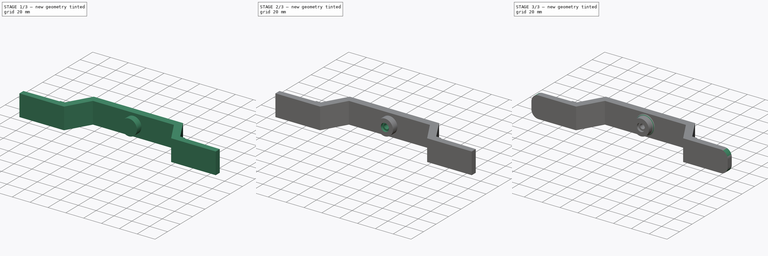
[diagram: build sequence overview — one tinted view per stage of 3, left to right]
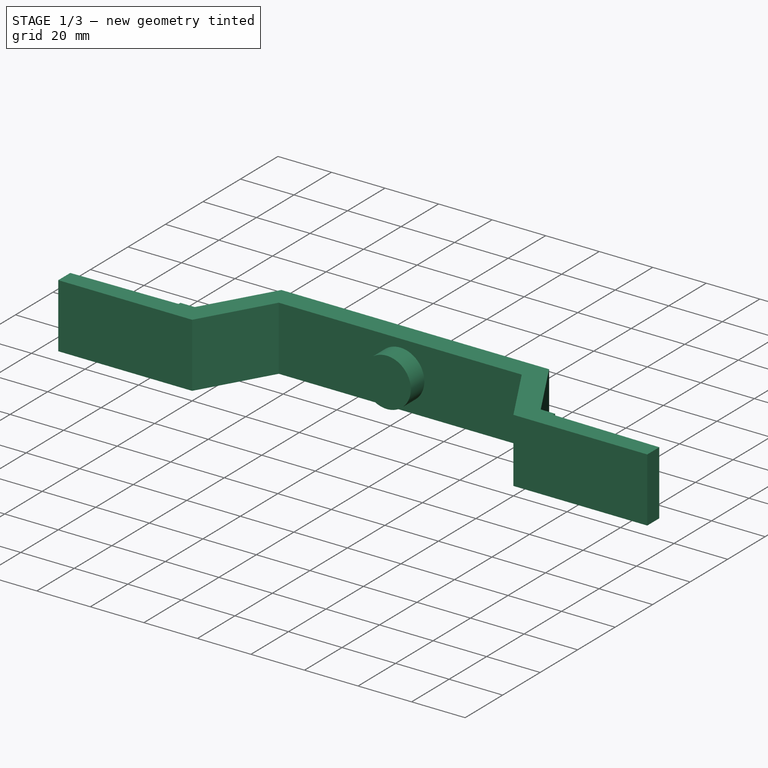
[diagram: stage 1 of 3 — iso view after this stage's code; geometry added in this stage tinted green]
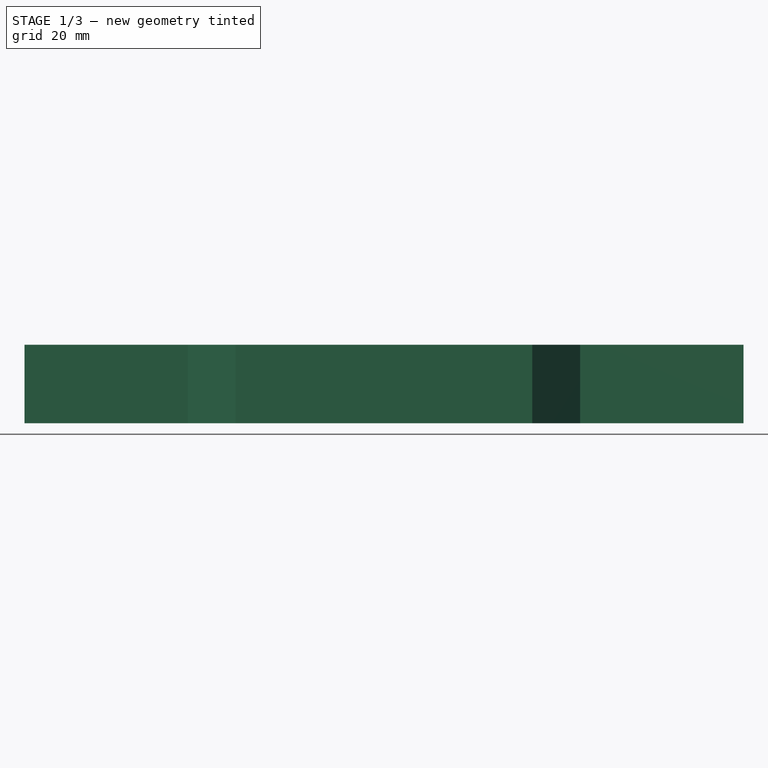
[diagram: stage 1 of 3 — front view after this stage's code; geometry added in this stage tinted green]
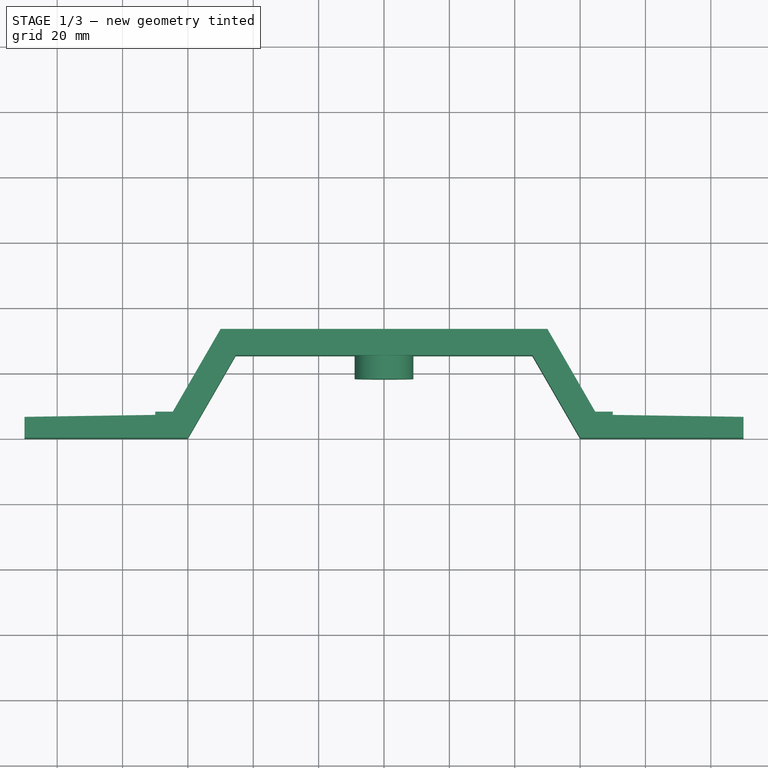
[diagram: stage 1 of 3 — top view after this stage's code; geometry added in this stage tinted green]
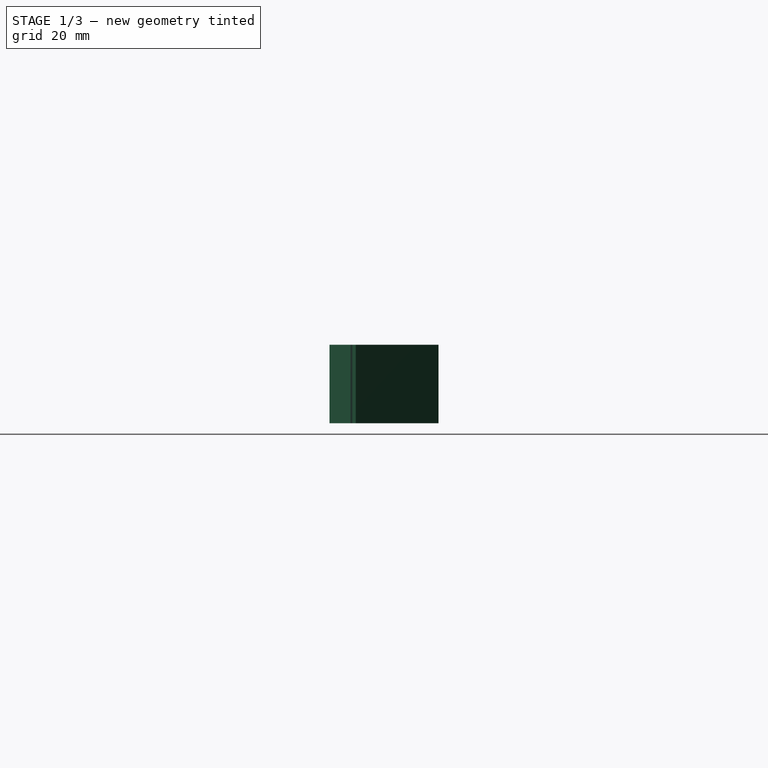
[diagram: stage 1 of 3 — right view after this stage's code; geometry added in this stage tinted green]
FCSTD DOCUMENT  (FreeCAD 0.20R29603 (Git))
Label: Base2V3
License: All rights reserved
LicenseURL: http://en.wikipedia.org/wiki/All_rights_reserved
objects: Sketcher::SketchObject×4, PartDesign::Pad×2, PartDesign::Pocket×2, PartDesign::Chamfer×1, PartDesign::Fillet×1, PartDesign::Body×1
note: 17 computed .brp shape members not serialized (recipe doc carries the construction recipe); baked Part::Feature solids carry a one-line shape summary decoded from their .brp

FEATURE [Sketcher::SketchObject] Sketch
  FullyConstrained = true
  MapMode = 5
  Support = -> [XY_Plane]
  sketch-geometry (16):
    g0: LineSegment StartX=-110 StartY=0 StartZ=0 EndX=-60 EndY=0 EndZ=0
    g1: LineSegment StartX=-60 StartY=0 StartZ=0 EndX=-45.38 EndY=25.3226 EndZ=0
    g2: LineSegment StartX=-110 StartY=0 StartZ=0 EndX=-110 EndY=6.4 EndZ=0
    g3: LineSegment StartX=-64.62 StartY=8 StartZ=0 EndX=-50 EndY=33.3226 EndZ=0
    g4: LineSegment StartX=-64.62 StartY=8 StartZ=0 EndX=-70 EndY=8 EndZ=0
    g5: LineSegment StartX=-70 StartY=8 StartZ=0 EndX=-70 EndY=7 EndZ=0
    g6: LineSegment StartX=-70 StartY=7 StartZ=0 EndX=-110 EndY=6.4 EndZ=0
    g7: LineSegment StartX=110 StartY=0 StartZ=0 EndX=60 EndY=0 EndZ=0
    g8: LineSegment StartX=60 StartY=0 StartZ=0 EndX=45.38 EndY=25.3226 EndZ=0
    g9: LineSegment StartX=110 StartY=0 StartZ=0 EndX=110 EndY=6.4 EndZ=0
    g10: LineSegment StartX=64.62 StartY=8 StartZ=0 EndX=50 EndY=33.3226 EndZ=0
    g11: LineSegment StartX=64.62 StartY=8 StartZ=0 EndX=70 EndY=8 EndZ=0
    g12: LineSegment StartX=70 StartY=8 StartZ=0 EndX=70 EndY=7 EndZ=0
    g13: LineSegment StartX=70 StartY=7 StartZ=0 EndX=110 EndY=6.4 EndZ=0
    g14: LineSegment StartX=-45.38 StartY=25.3226 StartZ=0 EndX=45.38 EndY=25.3226 EndZ=0
    g15: LineSegment StartX=-50 StartY=33.3226 StartZ=0 EndX=50 EndY=33.3226 EndZ=0
  constraints (45):
    c: PointOnObject(g0,g-1)
    c: PointOnObject(g0,g-1)
    c: Coincident(g0,g1)
    c: Coincident(g0,g2)
    c: Angle(g1) = 1.0472
    c: Parallel(g3,g1)
    c: Vertical(g2)
    c: DistanceX(g0,g0) = 50
    c: DistanceY(g0,g2) = 6.4
    c: DistanceX(g3,g0) = 4.62
    c: Coincident(g4,g3)
    c: Horizontal(g4)
    c: DistanceY(g0,g4) = 8
    c: Coincident(g5,g4)
    c: Vertical(g5)
    c: Coincident(g6,g5)
    c: Coincident(g6,g2)
    c: DistanceY(g5,g4) = 1
    c: DistanceX(g2,g5) = 40
    c: Coincident(g7,g8)
    c: Coincident(g7,g9)
    c: Angle(g8) = 2.0944
    c: Parallel(g10,g8)
    c: Vertical(g9)
    c: Coincident(g11,g10)
    c: Horizontal(g11)
    c: Coincident(g12,g11)
    c: Vertical(g12)
    c: Coincident(g13,g12)
    c: Coincident(g13,g9)
    c: Equal(g6,g13)
    c: Symmetric(g0,g7,g-2)
    c: Symmetric(g10,g3,g-2)
    c: Symmetric(g7,g0,g-2)
    c: Equal(g11,g4)
    c: Equal(g9,g2)
    c: Coincident(g14,g1)
    c: Coincident(g14,g8)
    c: Horizontal(g14)
    c: Coincident(g15,g3)
    c: Coincident(g15,g10)
    c: Horizontal(g15)
    c: DistanceX(g0,g7) = 220
    c: DistanceX(g3,g10) = 100
    c: DistanceY(g8,g10) = 8
FEATURE [PartDesign::Pad] Pad
  Direction = (0,0,1)
  Length = 24
  Length2 = 10
  Midplane = true
  Profile = -> Sketch
  ReferenceAxis = -> Sketch [N_Axis]
  Type = 0
FEATURE [Sketcher::SketchObject] Sketch002
  FullyConstrained = true
  MapMode = 5
  Placement = pos=(0,25.3226,0) rot=(1,0,0;1.5708rad)
  sketch-geometry (1):
    g0: Circle CenterX=0 CenterY=0 CenterZ=0 NormalX=0 NormalY=0 NormalZ=1 AngleXU=0 Radius=9
  constraints (2):
    c: Coincident(g0,g-1)
    c: Diameter(g0) = 18
FEATURE [PartDesign::Pad] Pad001
  BaseFeature = -> Pad
  Direction = (0,-1,2e-16)
  Length = 7.2
  Length2 = 10
  Profile = -> Sketch002
  ReferenceAxis = -> Sketch002 [N_Axis]
  Type = 0
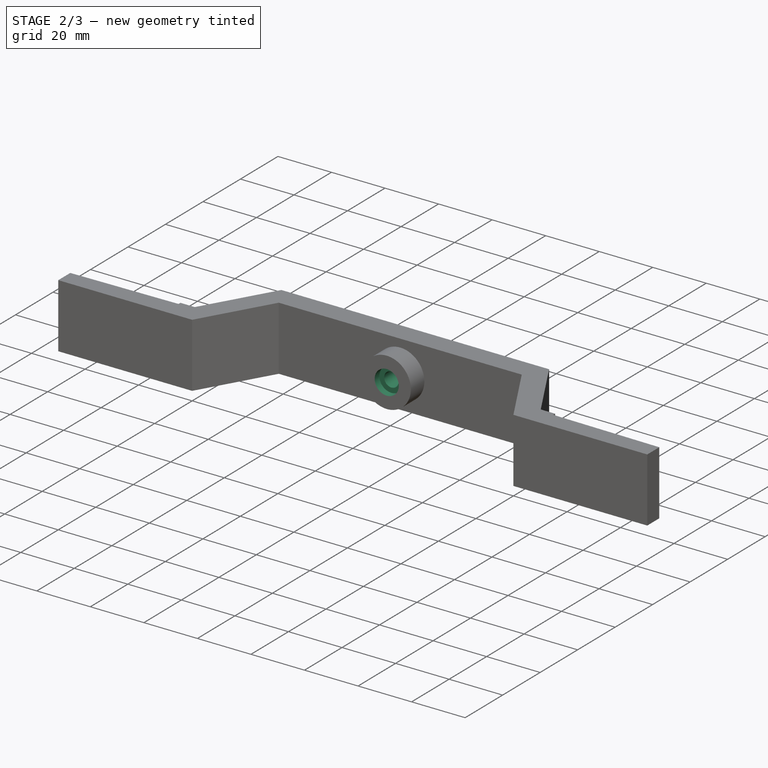
[diagram: stage 2 of 3 — iso view after this stage's code; geometry added in this stage tinted green]
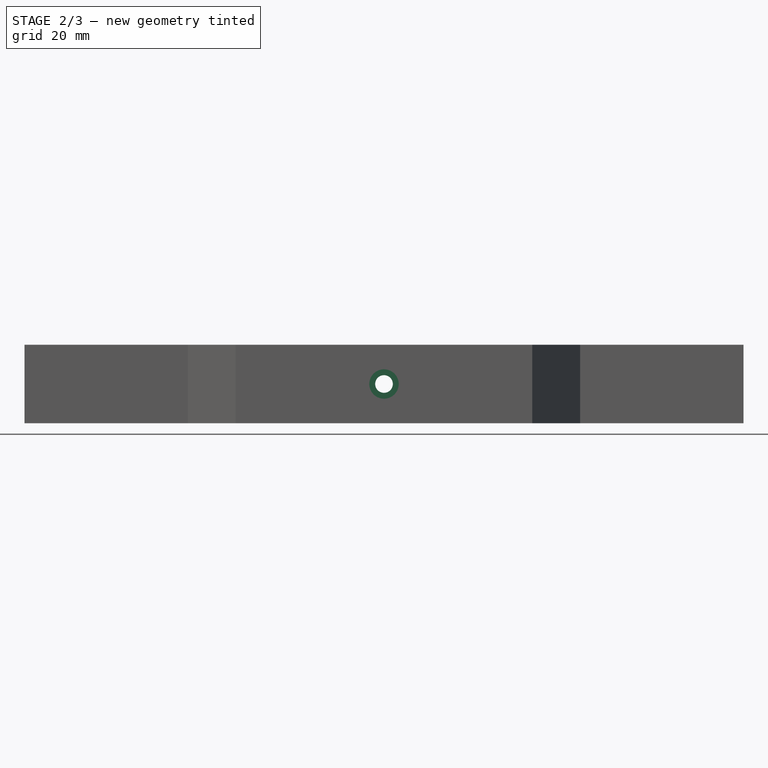
[diagram: stage 2 of 3 — front view after this stage's code; geometry added in this stage tinted green]
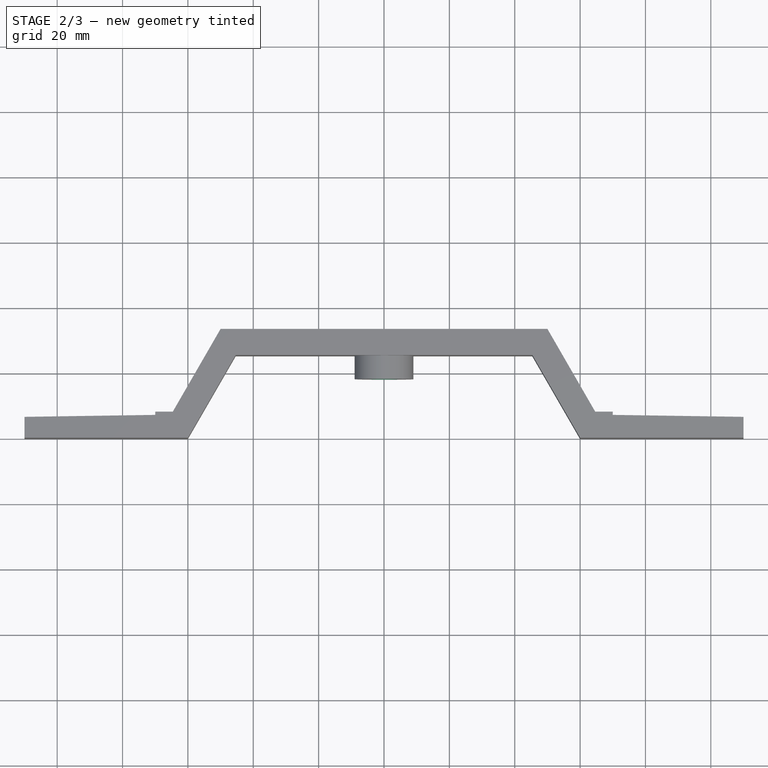
[diagram: stage 2 of 3 — top view after this stage's code; geometry added in this stage tinted green]
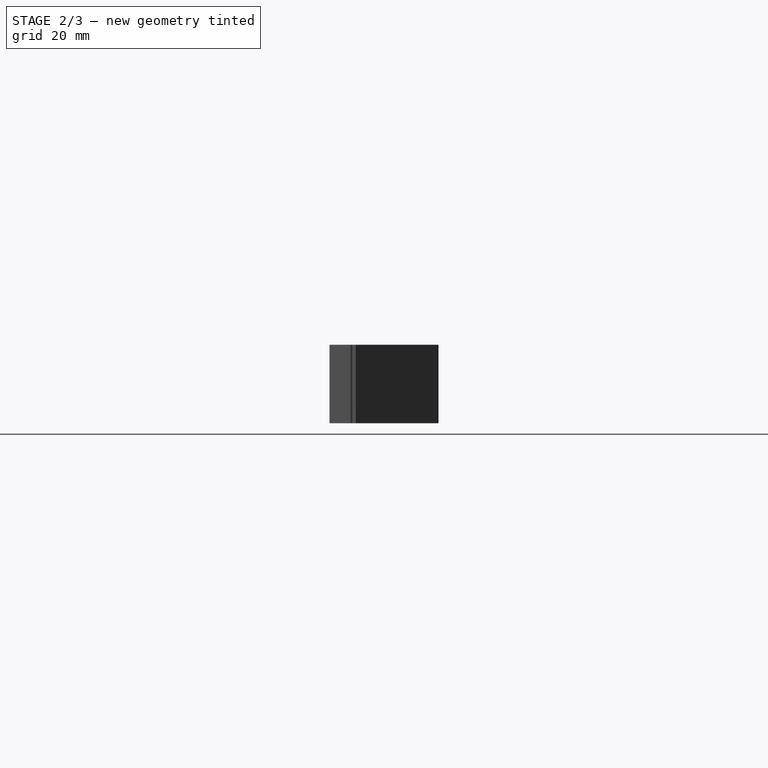
[diagram: stage 2 of 3 — right view after this stage's code; geometry added in this stage tinted green]
FEATURE [Sketcher::SketchObject] Sketch003
  FullyConstrained = true
  MapMode = 5
  Placement = pos=(0,18.1226,0) rot=(1,0,0;1.5708rad)
  Support = -> [Pad001]
  sketch-geometry (1):
    g0: Circle CenterX=0 CenterY=0 CenterZ=0 NormalX=0 NormalY=0 NormalZ=1 AngleXU=0 Radius=4.5
  constraints (2):
    c: Coincident(g0,g-1)
    c: Diameter(g0) = 9
FEATURE [PartDesign::Pocket] Pocket
  BaseFeature = -> Pad001
  Direction = (0,1,-2e-16)
  Length = 2.5
  Length2 = 5
  Profile = -> Sketch003
  ReferenceAxis = -> Sketch003 [N_Axis]
  Type = 0
FEATURE [Sketcher::SketchObject] Sketch004
  FullyConstrained = true
  MapMode = 5
  Placement = pos=(0,20.6226,0) rot=(1,0,0;1.5708rad)
  Support = -> [Pocket]
  sketch-geometry (1):
    g0: Circle CenterX=0 CenterY=0 CenterZ=0 NormalX=0 NormalY=0 NormalZ=1 AngleXU=0 Radius=2.7
  constraints (2):
    c: Coincident(g0,g-1)
    c: Diameter(g0) = 5.4
FEATURE [PartDesign::Pocket] Pocket001
  BaseFeature = -> Pocket
  Direction = (0,1,-2e-16)
  Length = 5
  Length2 = 5
  Profile = -> Sketch004
  ReferenceAxis = -> Sketch004 [N_Axis]
  Type = 1
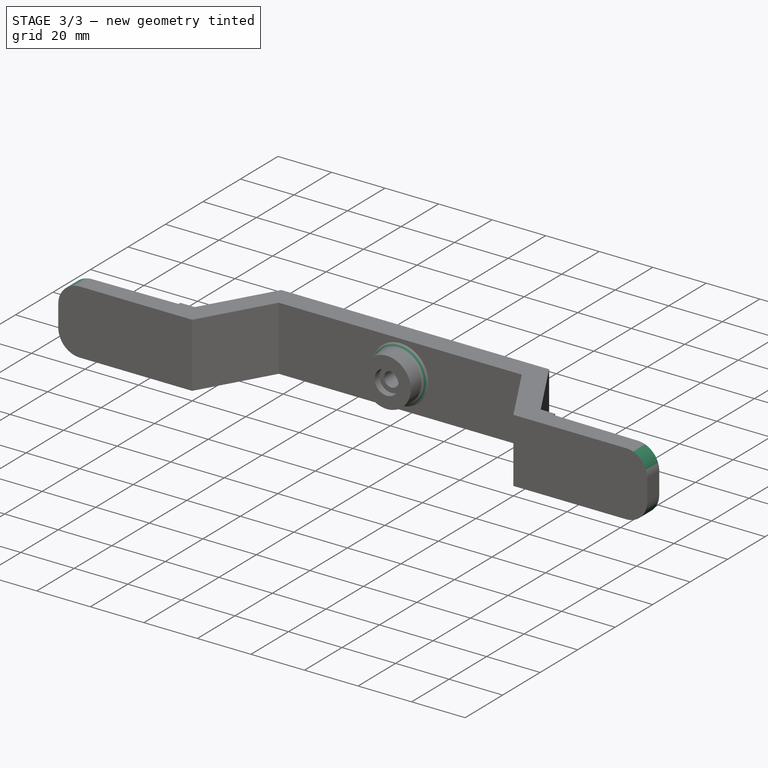
[diagram: stage 3 of 3 — iso view after this stage's code; geometry added in this stage tinted green]
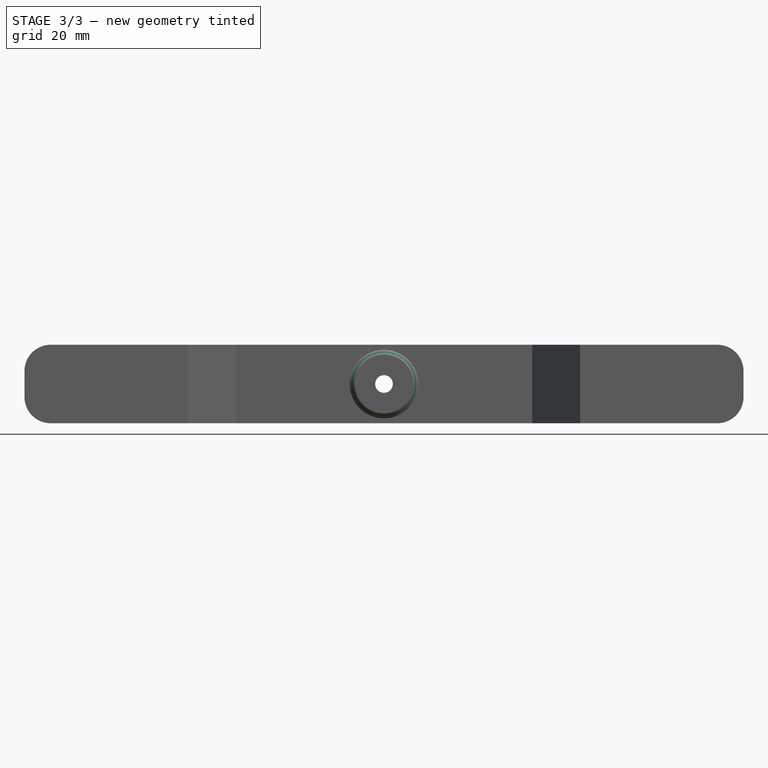
[diagram: stage 3 of 3 — front view after this stage's code; geometry added in this stage tinted green]
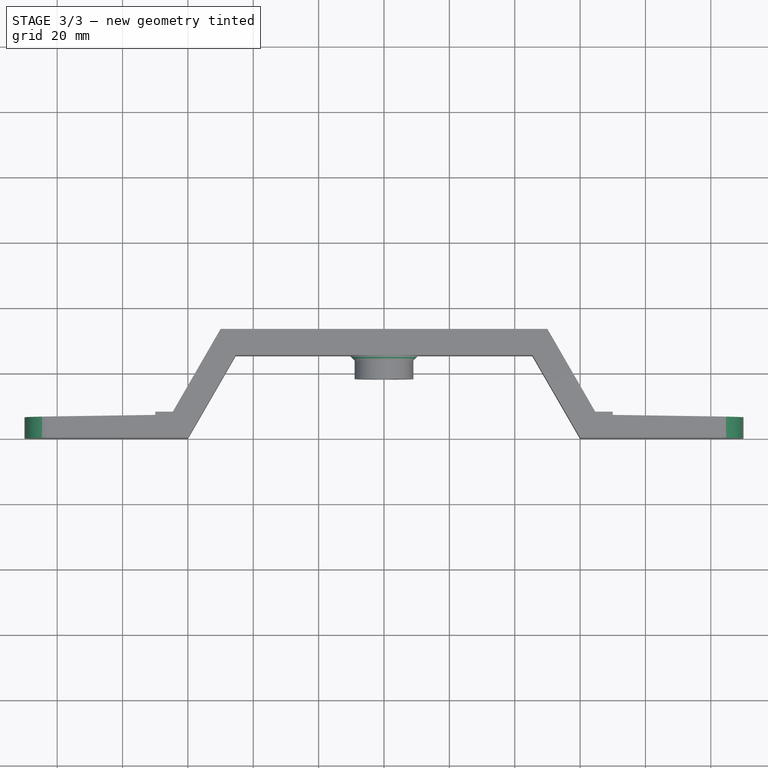
[diagram: stage 3 of 3 — top view after this stage's code; geometry added in this stage tinted green]
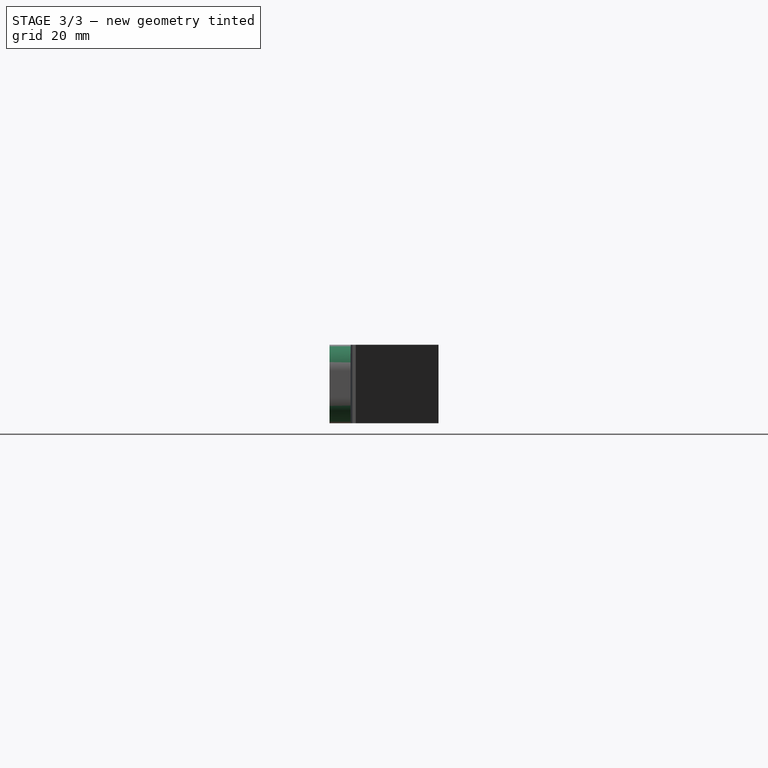
[diagram: stage 3 of 3 — right view after this stage's code; geometry added in this stage tinted green]
FEATURE [PartDesign::Chamfer] Chamfer
  Angle = 45
  Base = -> Pocket001 [Edge44]
  BaseFeature = -> Pocket001
  ChamferType = 0
  FlipDirection = false
  Size = 1.5
  Size2 = 1
  SupportTransform = false
  UseAllEdges = false
FEATURE [PartDesign::Fillet] Fillet
  Base = -> Chamfer [Edge14,Edge28,Edge18,Edge32]
  BaseFeature = -> Chamfer
  Radius = 8
  SupportTransform = false
  UseAllEdges = false
FEATURE [PartDesign::Body] Body
  Group = -> [Sketch,Pad,Sketch002,Pad001,Sketch003,Pocket,Sketch004,Pocket001,Chamfer,Fillet]
  Origin = -> Origin
  Tip = -> Fillet
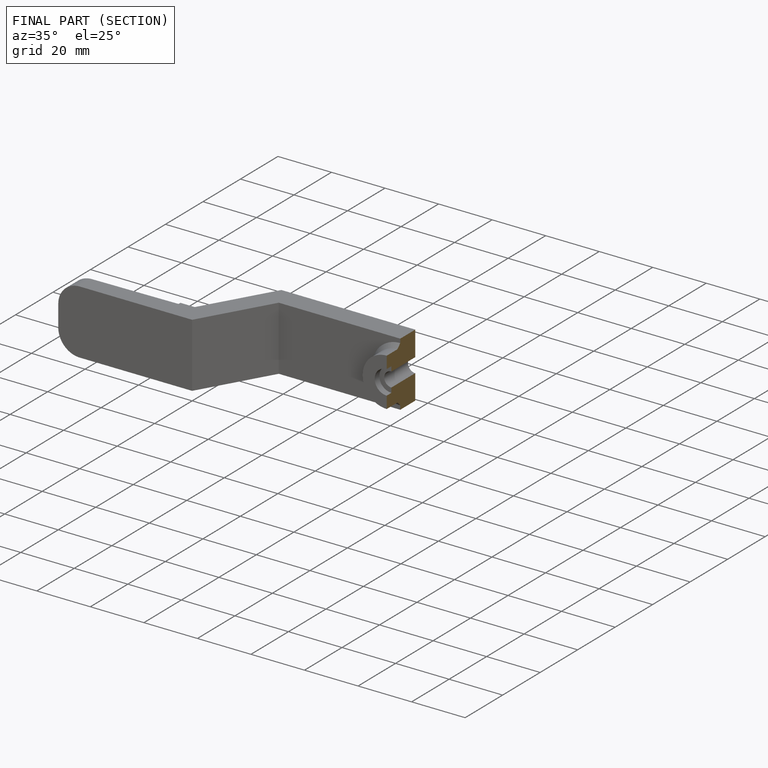
[diagram: finished part — half-section view (interior)]
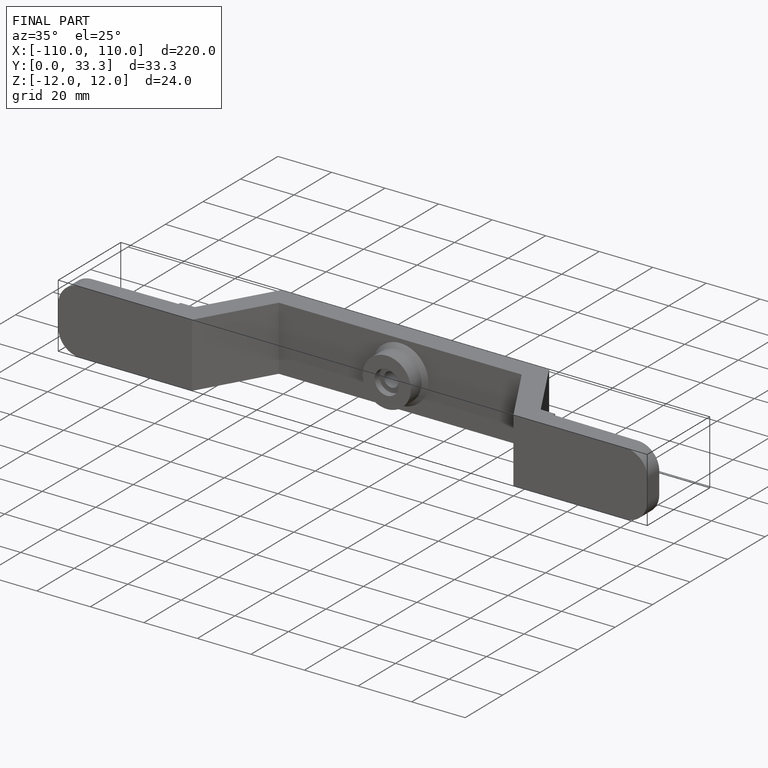
[diagram: finished part — iso view with bounding-box wireframe]
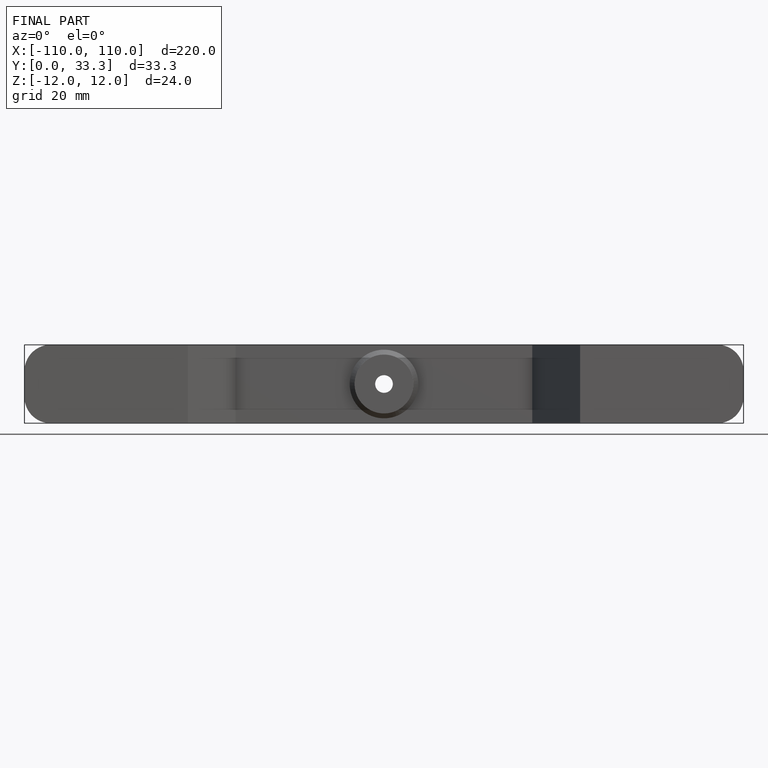
[diagram: finished part — front view with bounding-box wireframe]
